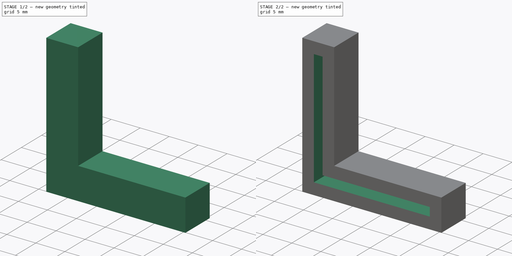
[diagram: build sequence overview — one tinted view per stage of 2, left to right]
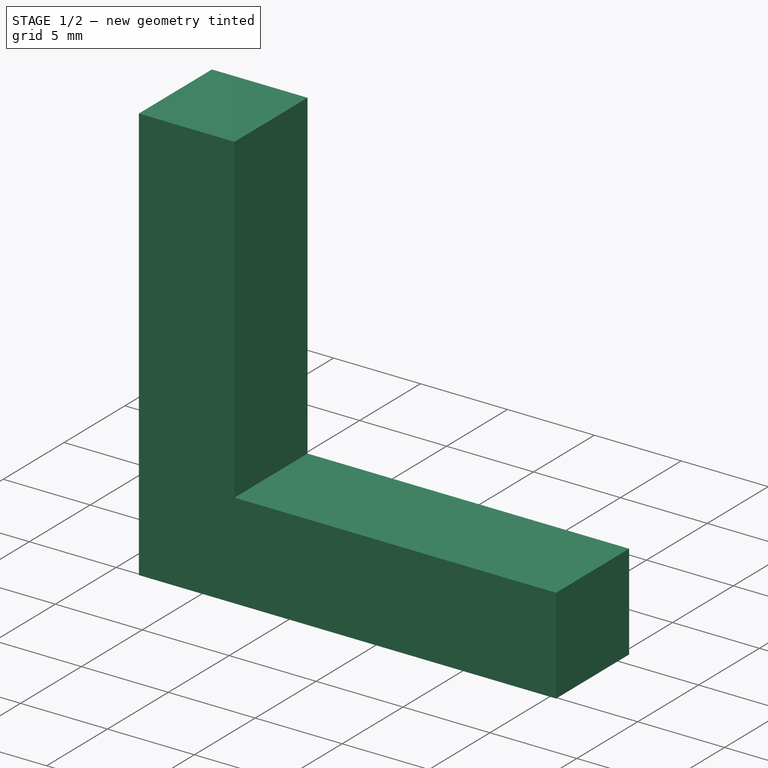
[diagram: stage 1 of 2 — iso view after this stage's code; geometry added in this stage tinted green]
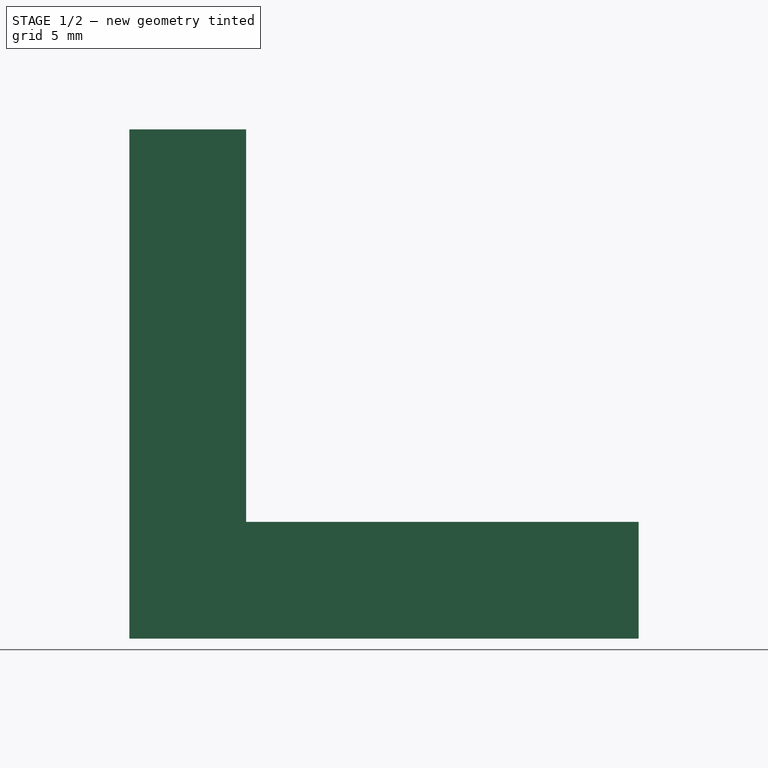
[diagram: stage 1 of 2 — front view after this stage's code; geometry added in this stage tinted green]
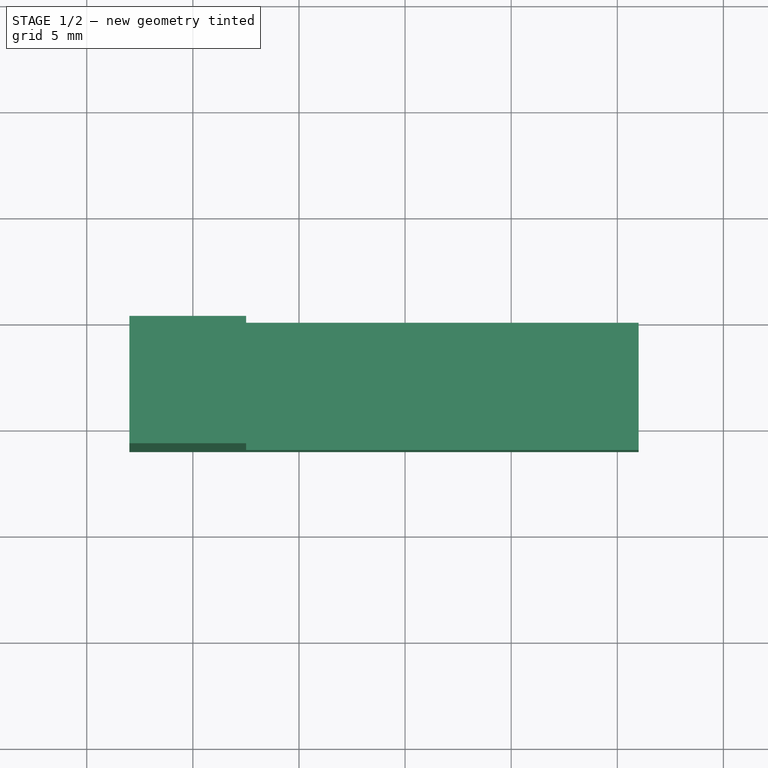
[diagram: stage 1 of 2 — top view after this stage's code; geometry added in this stage tinted green]
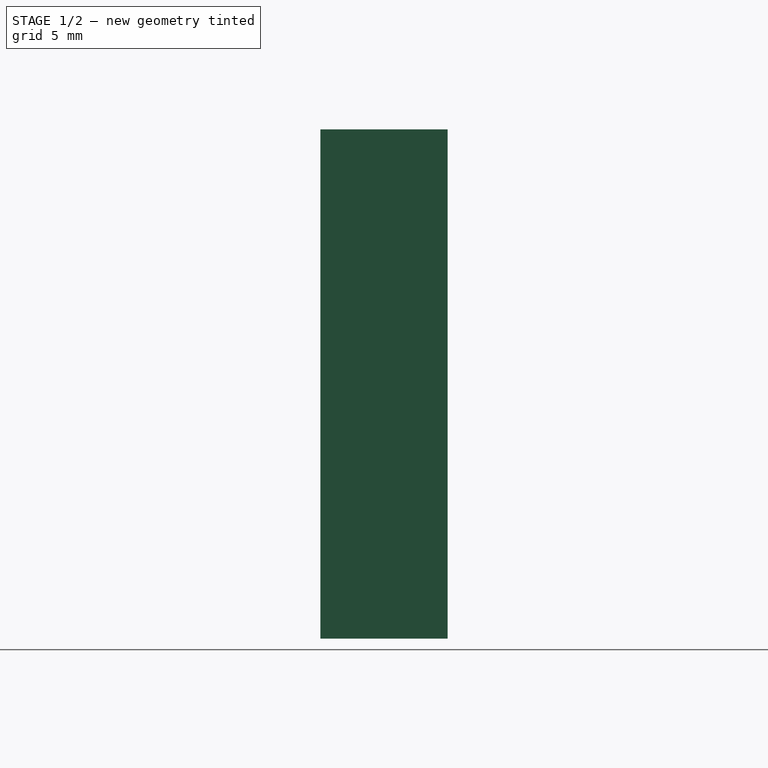
[diagram: stage 1 of 2 — right view after this stage's code; geometry added in this stage tinted green]
FCSTD DOCUMENT  (FreeCAD 0.17R13541 (Git))
Label: pied
License: All rights reserved
LicenseURL: http://en.wikipedia.org/wiki/All_rights_reserved
objects: Sketcher::SketchObject×2, Part::Extrusion×1, PartDesign::FeatureBase×1, PartDesign::Pocket×1, PartDesign::Body×1
note: 7 computed .brp shape members not serialized (recipe doc carries the construction recipe); baked Part::Feature solids carry a one-line shape summary decoded from their .brp

FEATURE [Sketcher::SketchObject] Sketch001
  MapMode = 5
  Placement = pos=(0,0,0) rot=(1,0,0;1.5708rad)
  sketch-geometry (18):
    g0: LineSegment [constr] StartX=-10.9934 StartY=9.82123 StartZ=0 EndX=-10.9934 EndY=-10.1788 EndZ=0
    g1: LineSegment [constr] StartX=-10.9934 StartY=-10.1788 StartZ=0 EndX=9.00664 EndY=-10.1788 EndZ=0
    g2: LineSegment [constr] StartX=9.00664 StartY=-10.1788 StartZ=0 EndX=9.00664 EndY=-8.67877 EndZ=0
    g3: LineSegment [constr] StartX=9.00664 StartY=-8.67877 StartZ=0 EndX=-9.49336 EndY=-8.67877 EndZ=0
    g4: LineSegment [constr] StartX=-9.49336 StartY=-8.67877 StartZ=0 EndX=-9.49336 EndY=9.82123 EndZ=0
    g5: LineSegment [constr] StartX=-9.49336 StartY=9.82123 StartZ=0 EndX=-10.9934 EndY=9.82123 EndZ=0
    g6: LineSegment StartX=-12.9934 StartY=11.8212 StartZ=0 EndX=-12.9934 EndY=-12.1788 EndZ=0
    g7: LineSegment StartX=-12.9934 StartY=-12.1788 StartZ=0 EndX=11.0066 EndY=-12.1788 EndZ=0
    g8: LineSegment StartX=11.0066 StartY=-12.1788 StartZ=0 EndX=11.0066 EndY=-6.67877 EndZ=0
    g9: LineSegment StartX=11.0066 StartY=-6.67877 StartZ=0 EndX=-7.49336 EndY=-6.67877 EndZ=0
    g10: LineSegment StartX=-7.49336 StartY=-6.67877 StartZ=0 EndX=-7.49336 EndY=11.8212 EndZ=0
    g11: LineSegment StartX=-7.49336 StartY=11.8212 StartZ=0 EndX=-12.9934 EndY=11.8212 EndZ=0
    g12: LineSegment [constr] StartX=-9.49336 StartY=11.8212 StartZ=0 EndX=-9.49336 EndY=9.82123 EndZ=0
    g13: LineSegment [constr] StartX=-10.9934 StartY=9.82123 StartZ=0 EndX=-12.9934 EndY=9.82123 EndZ=0
    g14: LineSegment [constr] StartX=-9.49336 StartY=9.82123 StartZ=0 EndX=-7.49336 EndY=9.82123 EndZ=0
    g15: LineSegment [constr] StartX=9.00664 StartY=-8.67877 StartZ=0 EndX=9.00664 EndY=-6.67877 EndZ=0
    g16: LineSegment [constr] StartX=9.00664 StartY=-10.1788 StartZ=0 EndX=11.0066 EndY=-10.1788 EndZ=0
    g17: LineSegment [constr] StartX=9.00664 StartY=-10.1788 StartZ=0 EndX=9.00664 EndY=-12.1788 EndZ=0
  constraints (52):
    c: Vertical(g0)
    c: Coincident(g0,g1)
    c: Coincident(g1,g2)
    c: Coincident(g2,g3)
    c: Horizontal(g3)
    c: Coincident(g3,g4)
    c: Coincident(g4,g5)
    c: Coincident(g5,g0)
    c: Parallel(g0,g4)
    c: Parallel(g4,g2)
    c: Parallel(g3,g1)
    c: Equal(g2,g5)
    c: Equal(g1,g0)
    c: DistanceX(g0,g4) = 1.5
    c: DistanceX(g0,g1) = 20
    c: Vertical(g6)
    c: Coincident(g6,g7)
    c: Horizontal(g7)
    c: Coincident(g7,g8)
    c: Vertical(g8)
    c: Coincident(g8,g9)
    c: Horizontal(g9)
    c: Coincident(g9,g10)
    c: Vertical(g10)
    c: Coincident(g10,g11)
    c: Coincident(g11,g6)
    c: Parallel(g5,g11)
    c: Parallel(g11,g3)
    c: Vertical(g12)
    c: Vertical(g15)
    c: Horizontal(g16)
    c: Coincident(g4,g12)
    c: PointOnObject(g12,g11)
    c: Coincident(g4,g14)
    c: PointOnObject(g14,g10)
    c: Parallel(g14,g11)
    c: Coincident(g13,g0)
    c: PointOnObject(g13,g6)
    c: Parallel(g13,g11)
    c: Coincident(g17,g1)
    c: Coincident(g16,g1)
    c: Coincident(g15,g2)
    c: PointOnObject(g15,g9)
    c: PointOnObject(g16,g8)
    c: PointOnObject(g17,g7)
    c: Equal(g14,g12)
    c: Equal(g12,g13)
    c: Equal(g13,g16)
    c: Equal(g16,g17)
    c: Equal(g17,g15)
    c: DistanceY(g15,g15) = 2
    c: Parallel(g17,g8)
FEATURE [Part::Extrusion] Extrude
  Base = -> Sketch001
  Dir = (0,-1,0)
  DirMode = 2
  FaceMakerClass = Part::FaceMakerBullseye
  LengthFwd = 6
  LengthRev = 0
  Solid = true
  Symmetric = false
FEATURE [PartDesign::FeatureBase] BaseFeature
  BaseFeature = -> Extrude
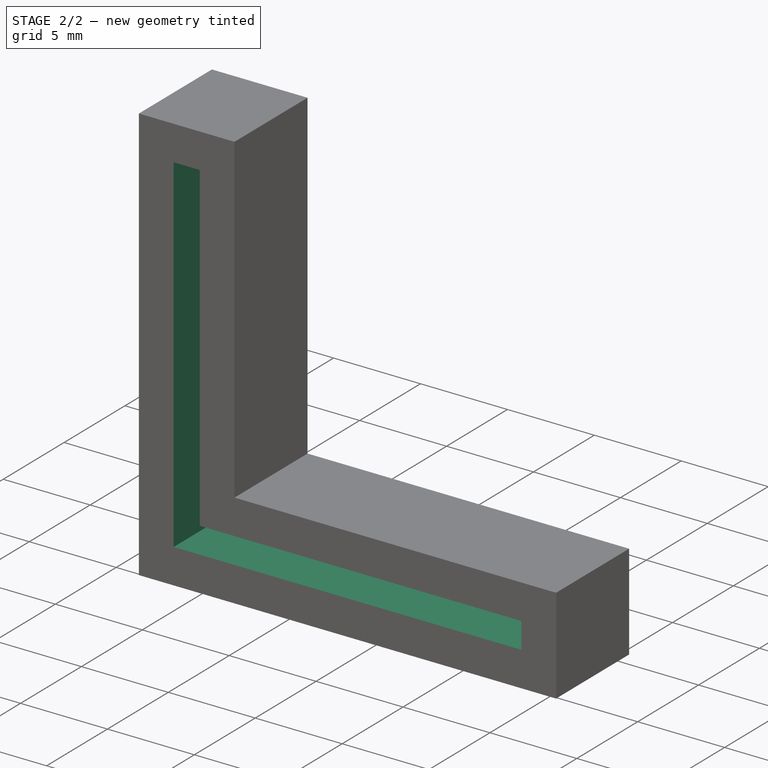
[diagram: stage 2 of 2 — iso view after this stage's code; geometry added in this stage tinted green]
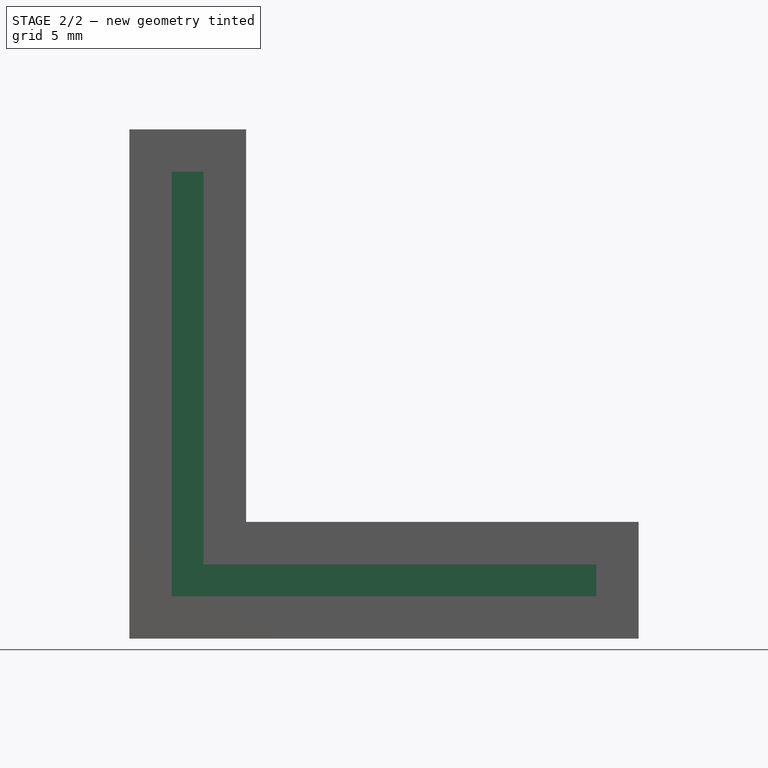
[diagram: stage 2 of 2 — front view after this stage's code; geometry added in this stage tinted green]
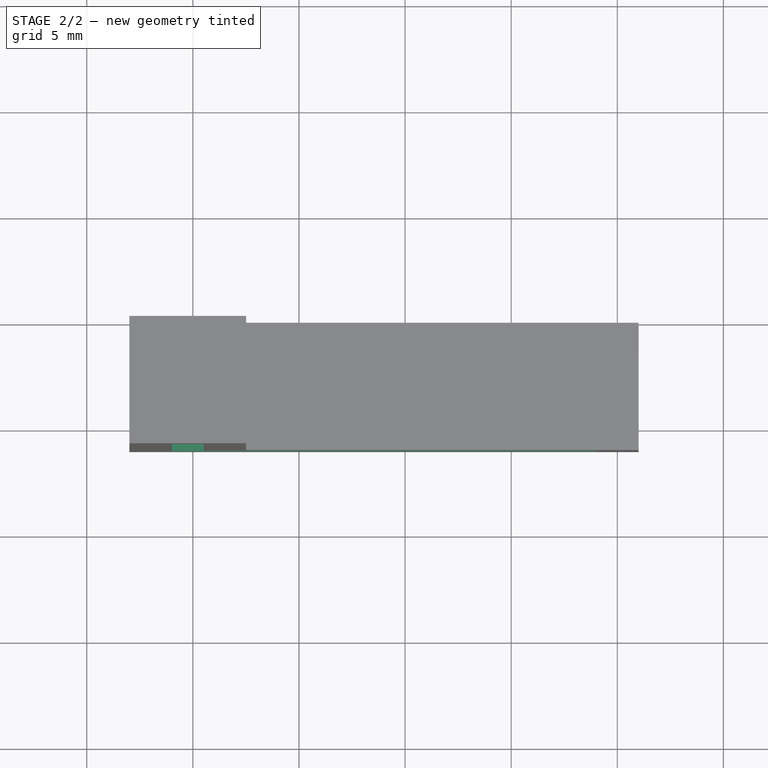
[diagram: stage 2 of 2 — top view after this stage's code; geometry added in this stage tinted green]
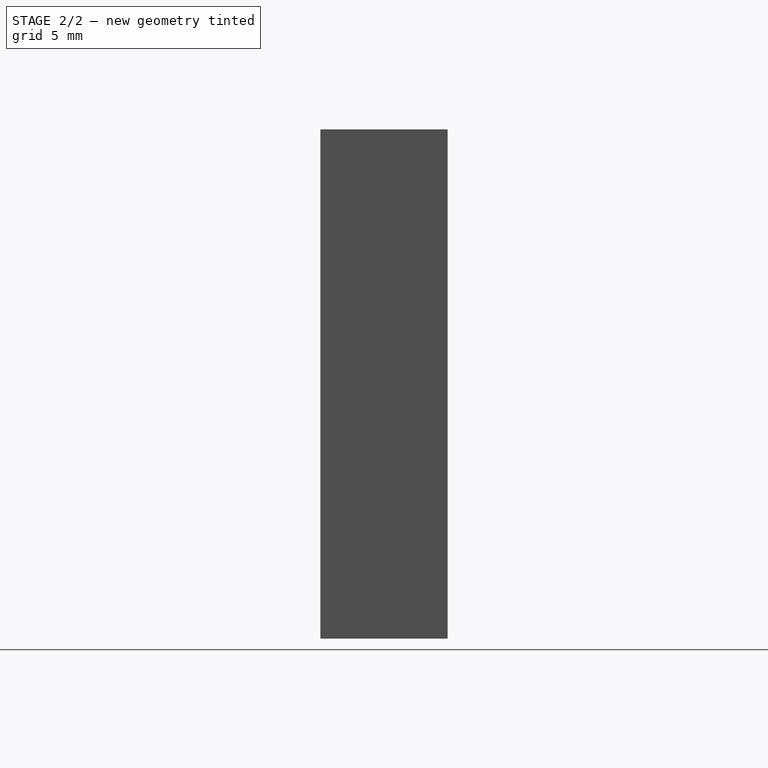
[diagram: stage 2 of 2 — right view after this stage's code; geometry added in this stage tinted green]
FEATURE [Sketcher::SketchObject] Sketch002
  ExternalGeometry = -> [BaseFeature]
  MapMode = 5
  Placement = pos=(0,-6,0) rot=(1,0,0;1.5708rad)
  sketch-geometry (18):
    g0: LineSegment StartX=-10.9934 StartY=9.82123 StartZ=0 EndX=-10.9934 EndY=-10.1788 EndZ=0
    g1: LineSegment StartX=-10.9934 StartY=-10.1788 StartZ=0 EndX=9.00664 EndY=-10.1788 EndZ=0
    g2: LineSegment StartX=9.00664 StartY=-10.1788 StartZ=0 EndX=9.00664 EndY=-8.67877 EndZ=0
    g3: LineSegment StartX=9.00664 StartY=-8.67877 StartZ=0 EndX=-9.49336 EndY=-8.67877 EndZ=0
    g4: LineSegment StartX=-9.49336 StartY=-8.67877 StartZ=0 EndX=-9.49336 EndY=9.82123 EndZ=0
    g5: LineSegment StartX=-9.49336 StartY=9.82123 StartZ=0 EndX=-10.9934 EndY=9.82123 EndZ=0
    g6: LineSegment [constr] StartX=-12.9934 StartY=11.8212 StartZ=0 EndX=-12.9934 EndY=-12.1788 EndZ=0
    g7: LineSegment [constr] StartX=-12.9934 StartY=-12.1788 StartZ=0 EndX=11.0066 EndY=-12.1788 EndZ=0
    g8: LineSegment [constr] StartX=11.0066 StartY=-12.1788 StartZ=0 EndX=11.0066 EndY=-6.67877 EndZ=0
    g9: LineSegment [constr] StartX=11.0066 StartY=-6.67877 StartZ=0 EndX=-7.49336 EndY=-6.67877 EndZ=0
    g10: LineSegment [constr] StartX=-7.49336 StartY=-6.67877 StartZ=0 EndX=-7.49336 EndY=11.8212 EndZ=0
    g11: LineSegment [constr] StartX=-7.49336 StartY=11.8212 StartZ=0 EndX=-12.9934 EndY=11.8212 EndZ=0
    g12: LineSegment [constr] StartX=-9.49336 StartY=11.8212 StartZ=0 EndX=-9.49336 EndY=9.82123 EndZ=0
    g13: LineSegment [constr] StartX=-10.9934 StartY=9.82123 StartZ=0 EndX=-12.9934 EndY=9.82123 EndZ=0
    g14: LineSegment [constr] StartX=-9.49336 StartY=9.82123 StartZ=0 EndX=-7.49336 EndY=9.82123 EndZ=0
    g15: LineSegment [constr] StartX=9.00664 StartY=-8.67877 StartZ=0 EndX=9.00664 EndY=-6.67877 EndZ=0
    g16: LineSegment [constr] StartX=9.00664 StartY=-10.1788 StartZ=0 EndX=11.0066 EndY=-10.1788 EndZ=0
    g17: LineSegment [constr] StartX=9.00664 StartY=-10.1788 StartZ=0 EndX=9.00664 EndY=-12.1788 EndZ=0
  constraints (53):
    c: Vertical(g0)
    c: Coincident(g0,g1)
    c: Coincident(g1,g2)
    c: Coincident(g2,g3)
    c: Horizontal(g3)
    c: Coincident(g3,g4)
    c: Coincident(g4,g5)
    c: Coincident(g5,g0)
    c: Parallel(g0,g4)
    c: Parallel(g4,g2)
    c: Parallel(g3,g1)
    c: Equal(g2,g5)
    c: Equal(g1,g0)
    c: DistanceX(g0,g4) = 1.5
    c: DistanceX(g0,g1) = 20
    c: Vertical(g6)
    c: Coincident(g6,g7)
    c: Horizontal(g7)
    c: Coincident(g7,g8)
    c: Vertical(g8)
    c: Coincident(g8,g9)
    c: Horizontal(g9)
    c: Coincident(g9,g10)
    c: Vertical(g10)
    c: Coincident(g10,g11)
    c: Coincident(g11,g6)
    c: Parallel(g5,g11)
    c: Parallel(g11,g3)
    c: Vertical(g12)
    c: Vertical(g15)
    c: Horizontal(g16)
    c: Coincident(g4,g12)
    c: PointOnObject(g12,g11)
    c: Coincident(g4,g14)
    c: PointOnObject(g14,g10)
    c: Parallel(g14,g11)
    c: Coincident(g13,g0)
    c: PointOnObject(g13,g6)
    c: Parallel(g13,g11)
    c: Coincident(g17,g1)
    c: Coincident(g16,g1)
    c: Coincident(g15,g2)
    c: PointOnObject(g15,g9)
    c: PointOnObject(g16,g8)
    c: PointOnObject(g17,g7)
    c: Equal(g14,g12)
    c: Equal(g12,g13)
    c: Equal(g13,g16)
    c: Equal(g16,g17)
    c: Equal(g17,g15)
    c: DistanceY(g15,g15) = 2
    c: Parallel(g17,g8)
    c: Coincident(g6,g-3)
FEATURE [PartDesign::Pocket] Pocket
  BaseFeature = -> BaseFeature
  Length = 4
  Length2 = 100
  Profile = -> Sketch002
  Type = 0
FEATURE [PartDesign::Body] Body
  BaseFeature = -> Extrude
  Group = -> [BaseFeature,Sketch002,Pocket]
  Origin = -> Origin
  Tip = -> Pocket
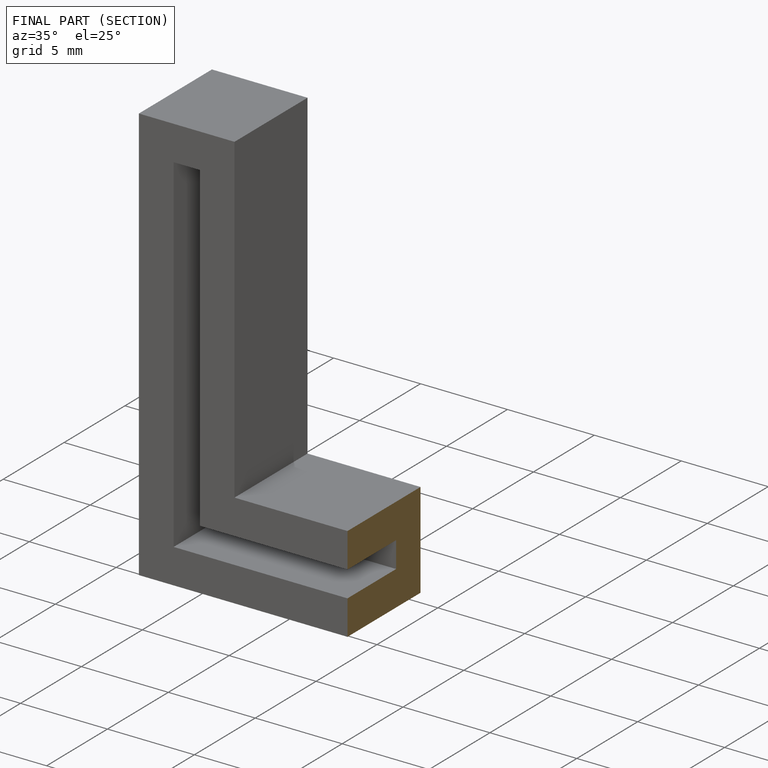
[diagram: finished part — half-section view (interior)]
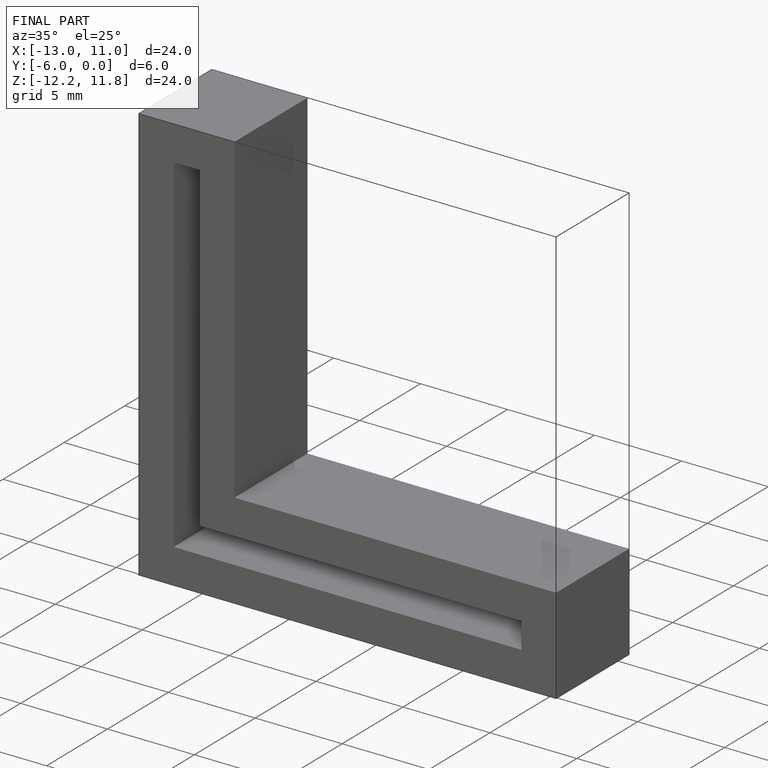
[diagram: finished part — iso view with bounding-box wireframe]
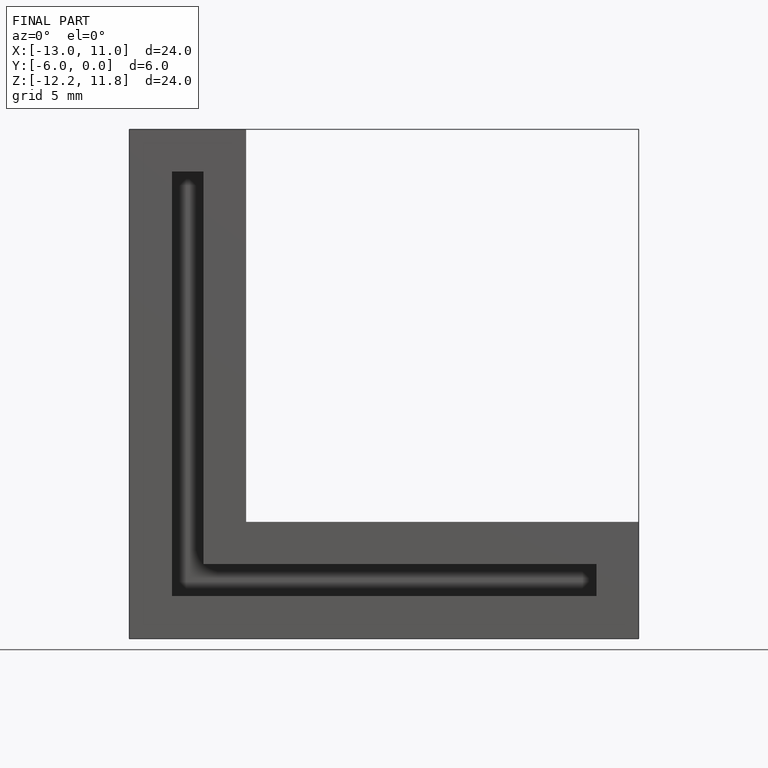
[diagram: finished part — front view with bounding-box wireframe]
